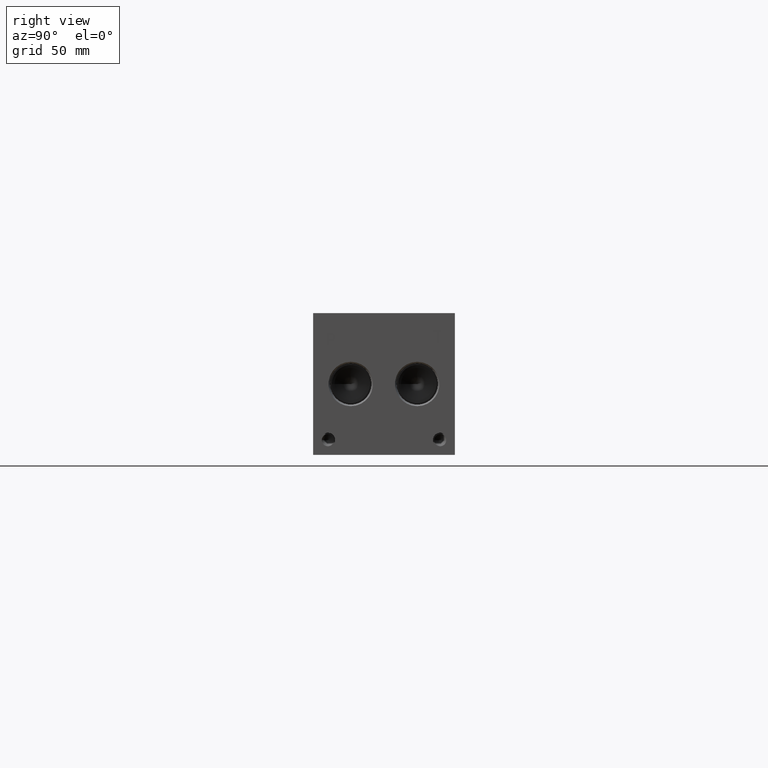
[diagram: clean part render]
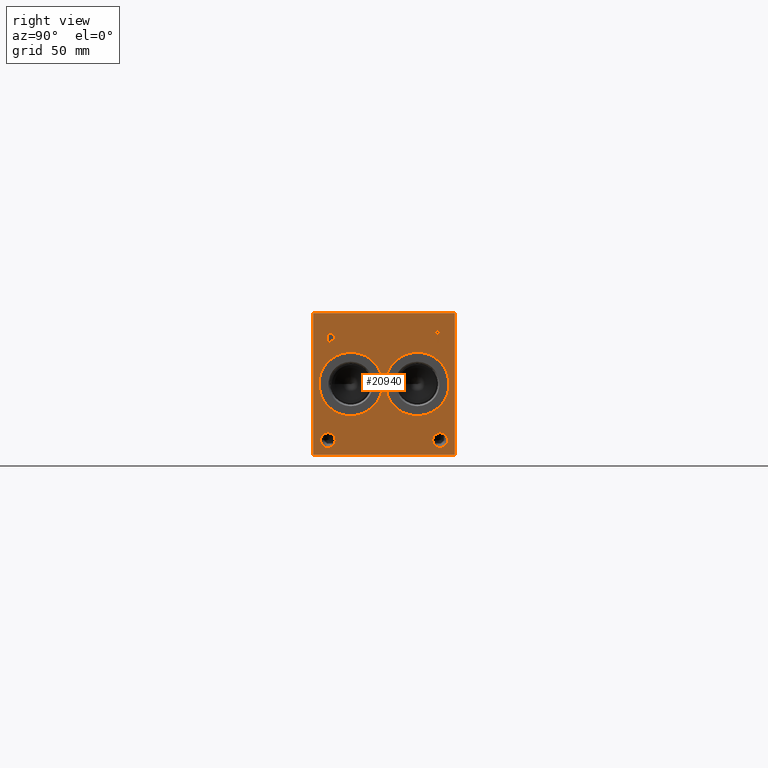
[diagram: same view with one face highlighted and labeled with its STEP entity id]
A machine part, right view. The second image highlights one B-rep face of the part: STEP entity #20940.
In plain terms, the highlighted planar face has unit normal (1, 0, 0).
Its self-contained STEP definition (entity closure, byte-faithful):
#392=CIRCLE('',#21875,17.0688);
#393=CIRCLE('',#21876,17.0688);
#394=CIRCLE('',#21877,17.0688);
#395=CIRCLE('',#21878,17.0688);
#396=CIRCLE('',#21879,3.9624);
#397=CIRCLE('',#21880,3.9624);
#398=CIRCLE('',#21881,3.9624);
#399=CIRCLE('',#21882,3.9624);
#1198=FACE_BOUND('',#3740,.T.);
#1199=FACE_BOUND('',#3741,.T.);
#1200=FACE_BOUND('',#3742,.T.);
#1201=FACE_BOUND('',#3743,.T.);
#1202=FACE_BOUND('',#3744,.T.);
#1203=FACE_BOUND('',#3745,.T.);
#1774=PLANE('',#21874);
#2538=FACE_OUTER_BOUND('',#3739,.T.);
#3739=EDGE_LOOP('',(#16974,#16975,#16976,#16977));
#3740=EDGE_LOOP('',(#16978,#16979));
#3741=EDGE_LOOP('',(#16980,#16981));
#3742=EDGE_LOOP('',(#16982,#16983));
#3743=EDGE_LOOP('',(#16984,#16985));
#3744=EDGE_LOOP('',(#16986,#16987,#16988,#16989,#16990,#16991,#16992,#16993));
#3745=EDGE_LOOP('',(#16994,#16995,#16996,#16997,#16998,#16999,#17000,#17001,
#17002));
#4396=LINE('',#28416,#6149);
#5652=LINE('',#34690,#7405);
#5655=LINE('',#34696,#7408);
#5658=LINE('',#34702,#7411);
#5661=LINE('',#34708,#7414);
#5664=LINE('',#34714,#7417);
#5668=LINE('',#34756,#7421);
#5669=LINE('',#34758,#7422);
#5670=LINE('',#34759,#7423);
#5671=LINE('',#34778,#7424);
#5672=LINE('',#34780,#7425);
#5673=LINE('',#34782,#7426);
#5674=LINE('',#34784,#7427);
#5675=LINE('',#34786,#7428);
#5676=LINE('',#34788,#7429);
#5677=LINE('',#34790,#7430);
#5678=LINE('',#34791,#7431);
#6149=VECTOR('',#23125,10.);
#7405=VECTOR('',#25261,10.);
#7408=VECTOR('',#25266,10.);
#7411=VECTOR('',#25271,10.);
#7414=VECTOR('',#25276,10.);
#7417=VECTOR('',#25281,10.);
#7421=VECTOR('',#25289,10.);
#7422=VECTOR('',#25290,10.);
#7423=VECTOR('',#25291,10.);
#7424=VECTOR('',#25308,10.);
#7425=VECTOR('',#25309,10.);
#7426=VECTOR('',#25310,10.);
#7427=VECTOR('',#25311,10.);
#7428=VECTOR('',#25312,10.);
#7429=VECTOR('',#25313,10.);
#7430=VECTOR('',#25314,10.);
#7431=VECTOR('',#25315,10.);
#8309=B_SPLINE_CURVE_WITH_KNOTS('',2,(#34657,#34658,#34659,#34660),
 .UNSPECIFIED.,.F.,.F.,(3,1,3),(0.,1.,2.),.UNSPECIFIED.);
#8311=B_SPLINE_CURVE_WITH_KNOTS('',2,(#34678,#34679,#34680,#34681),
 .UNSPECIFIED.,.F.,.F.,(3,1,3),(0.,1.,2.),.UNSPECIFIED.);
#8313=B_SPLINE_CURVE_WITH_KNOTS('',2,(#34727,#34728,#34729,#34730),
 .UNSPECIFIED.,.F.,.F.,(3,1,3),(0.,1.,2.),.UNSPECIFIED.);
#8315=B_SPLINE_CURVE_WITH_KNOTS('',2,(#34745,#34746,#34747,#34748),
 .UNSPECIFIED.,.F.,.F.,(3,1,3),(0.,1.,2.),.UNSPECIFIED.);
#8382=VERTEX_POINT('',#28413);
#8383=VERTEX_POINT('',#28415);
#9531=VERTEX_POINT('',#34655);
#9532=VERTEX_POINT('',#34656);
#9535=VERTEX_POINT('',#34677);
#9537=VERTEX_POINT('',#34689);
#9539=VERTEX_POINT('',#34695);
#9541=VERTEX_POINT('',#34701);
#9543=VERTEX_POINT('',#34707);
#9545=VERTEX_POINT('',#34713);
#9547=VERTEX_POINT('',#34726);
#9549=VERTEX_POINT('',#34755);
#9550=VERTEX_POINT('',#34757);
#9551=VERTEX_POINT('',#34760);
#9552=VERTEX_POINT('',#34761);
#9553=VERTEX_POINT('',#34764);
#9554=VERTEX_POINT('',#34765);
#9555=VERTEX_POINT('',#34768);
#9556=VERTEX_POINT('',#34769);
#9557=VERTEX_POINT('',#34772);
#9558=VERTEX_POINT('',#34773);
#9559=VERTEX_POINT('',#34776);
#9560=VERTEX_POINT('',#34777);
#9561=VERTEX_POINT('',#34779);
#9562=VERTEX_POINT('',#34781);
#9563=VERTEX_POINT('',#34783);
#9564=VERTEX_POINT('',#34785);
#9565=VERTEX_POINT('',#34787);
#9566=VERTEX_POINT('',#34789);
#10502=EDGE_CURVE('',#8382,#8383,#4396,.T.);
#12209=EDGE_CURVE('',#9531,#9532,#8309,.T.);
#12213=EDGE_CURVE('',#9535,#9531,#8311,.T.);
#12216=EDGE_CURVE('',#9537,#9535,#5652,.T.);
#12219=EDGE_CURVE('',#9539,#9537,#5655,.T.);
#12222=EDGE_CURVE('',#9541,#9539,#5658,.T.);
#12225=EDGE_CURVE('',#9543,#9541,#5661,.T.);
#12228=EDGE_CURVE('',#9545,#9543,#5664,.T.);
#12231=EDGE_CURVE('',#9547,#9545,#8313,.T.);
#12234=EDGE_CURVE('',#9532,#9547,#8315,.T.);
#12236=EDGE_CURVE('',#8382,#9549,#5668,.T.);
#12237=EDGE_CURVE('',#9549,#9550,#5669,.T.);
#12238=EDGE_CURVE('',#8383,#9550,#5670,.T.);
#12239=EDGE_CURVE('',#9551,#9552,#392,.T.);
#12240=EDGE_CURVE('',#9552,#9551,#393,.T.);
#12241=EDGE_CURVE('',#9553,#9554,#394,.T.);
#12242=EDGE_CURVE('',#9554,#9553,#395,.T.);
#12243=EDGE_CURVE('',#9555,#9556,#396,.T.);
#12244=EDGE_CURVE('',#9556,#9555,#397,.T.);
#12245=EDGE_CURVE('',#9557,#9558,#398,.T.);
#12246=EDGE_CURVE('',#9558,#9557,#399,.T.);
#12247=EDGE_CURVE('',#9559,#9560,#5671,.T.);
#12248=EDGE_CURVE('',#9560,#9561,#5672,.T.);
#12249=EDGE_CURVE('',#9561,#9562,#5673,.T.);
#12250=EDGE_CURVE('',#9562,#9563,#5674,.T.);
#12251=EDGE_CURVE('',#9563,#9564,#5675,.T.);
#12252=EDGE_CURVE('',#9564,#9565,#5676,.T.);
#12253=EDGE_CURVE('',#9565,#9566,#5677,.T.);
#12254=EDGE_CURVE('',#9566,#9559,#5678,.T.);
#16974=ORIENTED_EDGE('',*,*,#12236,.T.);
#16975=ORIENTED_EDGE('',*,*,#12237,.T.);
#16976=ORIENTED_EDGE('',*,*,#12238,.F.);
#16977=ORIENTED_EDGE('',*,*,#10502,.F.);
#16978=ORIENTED_EDGE('',*,*,#12239,.T.);
#16979=ORIENTED_EDGE('',*,*,#12240,.T.);
#16980=ORIENTED_EDGE('',*,*,#12241,.T.);
#16981=ORIENTED_EDGE('',*,*,#12242,.T.);
#16982=ORIENTED_EDGE('',*,*,#12243,.T.);
#16983=ORIENTED_EDGE('',*,*,#12244,.T.);
#16984=ORIENTED_EDGE('',*,*,#12245,.T.);
#16985=ORIENTED_EDGE('',*,*,#12246,.T.);
#16986=ORIENTED_EDGE('',*,*,#12247,.T.);
#16987=ORIENTED_EDGE('',*,*,#12248,.T.);
#16988=ORIENTED_EDGE('',*,*,#12249,.T.);
#16989=ORIENTED_EDGE('',*,*,#12250,.T.);
#16990=ORIENTED_EDGE('',*,*,#12251,.T.);
#16991=ORIENTED_EDGE('',*,*,#12252,.T.);
#16992=ORIENTED_EDGE('',*,*,#12253,.T.);
#16993=ORIENTED_EDGE('',*,*,#12254,.T.);
#16994=ORIENTED_EDGE('',*,*,#12209,.T.);
#16995=ORIENTED_EDGE('',*,*,#12234,.T.);
#16996=ORIENTED_EDGE('',*,*,#12231,.T.);
#16997=ORIENTED_EDGE('',*,*,#12228,.T.);
#16998=ORIENTED_EDGE('',*,*,#12225,.T.);
#16999=ORIENTED_EDGE('',*,*,#12222,.T.);
#17000=ORIENTED_EDGE('',*,*,#12219,.T.);
#17001=ORIENTED_EDGE('',*,*,#12216,.T.);
#17002=ORIENTED_EDGE('',*,*,#12213,.T.);
#20940=ADVANCED_FACE('',(#2538,#1198,#1199,#1200,#1201,#1202,#1203),#1774,
 .T.);
#21874=AXIS2_PLACEMENT_3D('',#34754,#25287,#25288);
#21875=AXIS2_PLACEMENT_3D('',#34762,#25292,#25293);
#21876=AXIS2_PLACEMENT_3D('',#34763,#25294,#25295);
#21877=AXIS2_PLACEMENT_3D('',#34766,#25296,#25297);
#21878=AXIS2_PLACEMENT_3D('',#34767,#25298,#25299);
#21879=AXIS2_PLACEMENT_3D('',#34770,#25300,#25301);
#21880=AXIS2_PLACEMENT_3D('',#34771,#25302,#25303);
#21881=AXIS2_PLACEMENT_3D('',#34774,#25304,#25305);
#21882=AXIS2_PLACEMENT_3D('',#34775,#25306,#25307);
#23125=DIRECTION('',(0.,0.,1.));
#25261=DIRECTION('',(0.,1.,0.));
#25266=DIRECTION('',(0.,0.,1.));
#25271=DIRECTION('',(0.,-1.,0.));
#25276=DIRECTION('',(0.,0.,-1.));
#25281=DIRECTION('',(0.,-1.,0.));
#25287=DIRECTION('center_axis',(1.,0.,0.));
#25288=DIRECTION('ref_axis',(0.,1.,0.));
#25289=DIRECTION('',(0.,1.,0.));
#25290=DIRECTION('',(0.,0.,1.));
#25291=DIRECTION('',(0.,1.,0.));
#25292=DIRECTION('center_axis',(-1.,0.,0.));
#25293=DIRECTION('ref_axis',(0.,0.,-1.));
#25294=DIRECTION('center_axis',(-1.,0.,0.));
#25295=DIRECTION('ref_axis',(0.,0.,-1.));
#25296=DIRECTION('center_axis',(-1.,0.,0.));
#25297=DIRECTION('ref_axis',(0.,0.,-1.));
#25298=DIRECTION('center_axis',(-1.,0.,0.));
#25299=DIRECTION('ref_axis',(0.,0.,-1.));
#25300=DIRECTION('center_axis',(-1.,0.,0.));
#25301=DIRECTION('ref_axis',(0.,1.,0.));
#25302=DIRECTION('center_axis',(-1.,0.,0.));
#25303=DIRECTION('ref_axis',(0.,1.,0.));
#25304=DIRECTION('center_axis',(-1.,0.,0.));
#25305=DIRECTION('ref_axis',(0.,1.,0.));
#25306=DIRECTION('center_axis',(-1.,0.,0.));
#25307=DIRECTION('ref_axis',(0.,1.,0.));
#25308=DIRECTION('',(0.,-1.,0.));
#25309=DIRECTION('',(0.,0.,1.));
#25310=DIRECTION('',(0.,-1.,0.));
#25311=DIRECTION('',(0.,0.,1.));
#25312=DIRECTION('',(0.,1.,0.));
#25313=DIRECTION('',(0.,0.,-1.));
#25314=DIRECTION('',(0.,-1.,0.));
#25315=DIRECTION('',(0.,0.,-1.));
#28413=CARTESIAN_POINT('',(377.825,0.,0.));
#28415=CARTESIAN_POINT('',(377.825,0.,76.2));
#28416=CARTESIAN_POINT('',(377.825,0.,0.));
#34655=CARTESIAN_POINT('',(377.825,11.0443172023594,64.6912681439707));
#34656=CARTESIAN_POINT('',(377.825,11.800759654532,63.1732373726039));
#34657=CARTESIAN_POINT('Ctrl Pts',(377.825,11.0443172023594,64.6912681439707));
#34658=CARTESIAN_POINT('Ctrl Pts',(377.825,11.3993820268486,64.4494123939564));
#34659=CARTESIAN_POINT('Ctrl Pts',(377.825,11.800759654532,63.7032616758269));
#34660=CARTESIAN_POINT('Ctrl Pts',(377.825,11.800759654532,63.1732373726039));
#34677=CARTESIAN_POINT('',(377.825,9.3822021543883,65.0874999046326));
#34678=CARTESIAN_POINT('Ctrl Pts',(377.825,9.3822021543883,65.0874999046326));
#34679=CARTESIAN_POINT('Ctrl Pts',(377.825,9.94824752676236,65.0874999046326));
#34680=CARTESIAN_POINT('Ctrl Pts',(377.825,10.740711048086,64.9022486918556));
#34681=CARTESIAN_POINT('Ctrl Pts',(377.825,11.0443172023594,64.6912681439707));
#34689=CARTESIAN_POINT('',(377.825,7.78698337769779,65.0874999046326));
#34690=CARTESIAN_POINT('',(377.825,3.89349168884889,65.0874999046326));
#34695=CARTESIAN_POINT('',(377.825,7.78698337769779,58.7375));
#34696=CARTESIAN_POINT('',(377.825,7.78698337769779,29.36875));
#34701=CARTESIAN_POINT('',(377.825,8.63090556923729,58.7375));
#34702=CARTESIAN_POINT('',(377.825,4.31545278461864,58.7375));
#34707=CARTESIAN_POINT('',(377.825,8.63090556923729,61.1045988299279));
#34708=CARTESIAN_POINT('',(377.825,8.63090556923729,30.5522994149639));
#34713=CARTESIAN_POINT('',(377.825,9.34618108523723,61.1045988299279));
#34714=CARTESIAN_POINT('',(377.825,4.67309054261861,61.1045988299279));
#34726=CARTESIAN_POINT('',(377.825,11.2450060162011,61.7632698086904));
#34727=CARTESIAN_POINT('Ctrl Pts',(377.825,11.2450060162011,61.7632698086904));
#34728=CARTESIAN_POINT('Ctrl Pts',(377.825,10.9156705268198,61.4390801863307));
#34729=CARTESIAN_POINT('Ctrl Pts',(377.825,10.0254355320861,61.1045988299279));
#34730=CARTESIAN_POINT('Ctrl Pts',(377.825,9.34618108523723,61.1045988299279));
#34745=CARTESIAN_POINT('Ctrl Pts',(377.825,11.800759654532,63.1732373726039));
#34746=CARTESIAN_POINT('Ctrl Pts',(377.825,11.800759654532,62.7615680108774));
#34747=CARTESIAN_POINT('Ctrl Pts',(377.825,11.5074452343018,62.0205631597695));
#34748=CARTESIAN_POINT('Ctrl Pts',(377.825,11.2450060162011,61.7632698086904));
#34754=CARTESIAN_POINT('Origin',(377.825,0.,0.));
#34755=CARTESIAN_POINT('',(377.825,76.2,0.));
#34756=CARTESIAN_POINT('',(377.825,0.,0.));
#34757=CARTESIAN_POINT('',(377.825,76.2,76.2));
#34758=CARTESIAN_POINT('',(377.825,76.2,0.));
#34759=CARTESIAN_POINT('',(377.825,0.,76.2));
#34760=CARTESIAN_POINT('',(377.825,55.9562,21.0312));
#34761=CARTESIAN_POINT('',(377.825,55.9562,55.1688));
#34762=CARTESIAN_POINT('Origin',(377.825,55.9562,38.1));
#34763=CARTESIAN_POINT('Origin',(377.825,55.9562,38.1));
#34764=CARTESIAN_POINT('',(377.825,20.2438,21.0312));
#34765=CARTESIAN_POINT('',(377.825,20.2438,55.1688));
#34766=CARTESIAN_POINT('Origin',(377.825,20.2438,38.1));
#34767=CARTESIAN_POINT('Origin',(377.825,20.2438,38.1));
#34768=CARTESIAN_POINT('',(377.825,11.8872,7.9248));
#34769=CARTESIAN_POINT('',(377.825,3.9624,7.9248));
#34770=CARTESIAN_POINT('Origin',(377.825,7.9248,7.9248));
#34771=CARTESIAN_POINT('Origin',(377.825,7.9248,7.9248));
#34772=CARTESIAN_POINT('',(377.825,72.2376,7.9248));
#34773=CARTESIAN_POINT('',(377.825,64.3128,7.9248));
#34774=CARTESIAN_POINT('Origin',(377.825,68.2752,7.9248));
#34775=CARTESIAN_POINT('Origin',(377.825,68.2752,7.9248));
#34776=CARTESIAN_POINT('',(377.825,67.262915271453,60.325));
#34777=CARTESIAN_POINT('',(377.825,66.4189930799135,60.325));
#34778=CARTESIAN_POINT('',(377.825,33.6314576357265,60.325));
#34779=CARTESIAN_POINT('',(377.825,66.4189930799135,65.9237033194816));
#34780=CARTESIAN_POINT('',(377.825,66.4189930799135,30.1625));
#34781=CARTESIAN_POINT('',(377.825,64.2886041329784,65.9237033194816));
#34782=CARTESIAN_POINT('',(377.825,33.2094965399567,65.9237033194816));
#34783=CARTESIAN_POINT('',(377.825,64.2886041329784,66.6749999046326));
#34784=CARTESIAN_POINT('',(377.825,64.2886041329784,32.9618516597408));
#34785=CARTESIAN_POINT('',(377.825,69.3933042183881,66.6749999046326));
#34786=CARTESIAN_POINT('',(377.825,32.1443020664892,66.6749999046326));
#34787=CARTESIAN_POINT('',(377.825,69.3933042183881,65.9237033194816));
#34788=CARTESIAN_POINT('',(377.825,69.3933042183881,33.3374999523163));
#34789=CARTESIAN_POINT('',(377.825,67.262915271453,65.9237033194816));
#34790=CARTESIAN_POINT('',(377.825,34.696652109194,65.9237033194816));
#34791=CARTESIAN_POINT('',(377.825,67.262915271453,32.9618516597408));